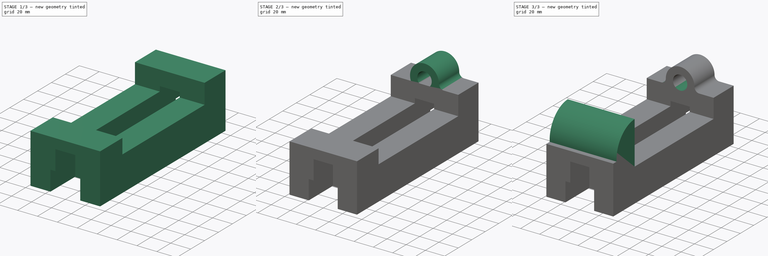
[diagram: build sequence overview — one tinted view per stage of 3, left to right]
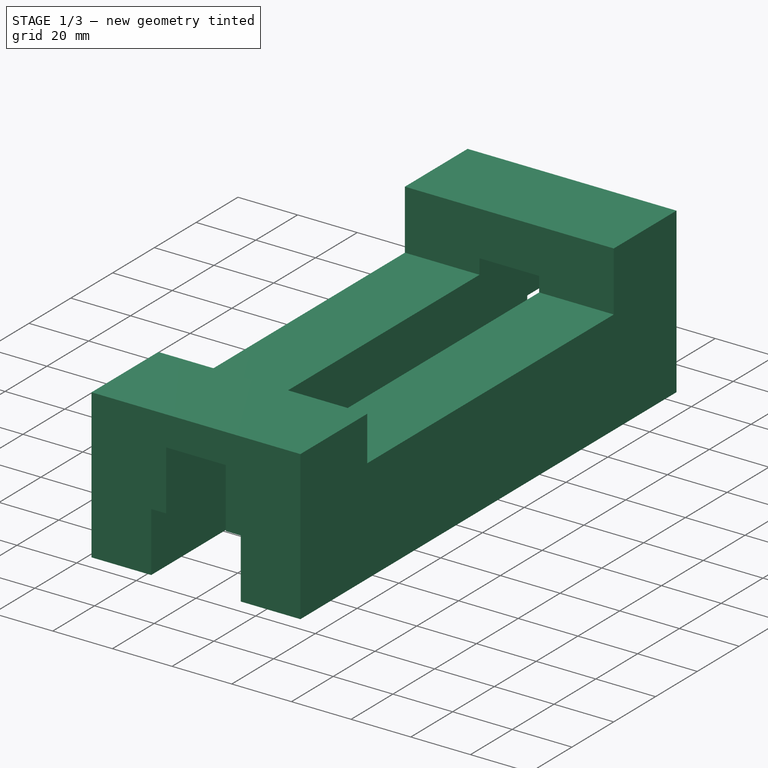
[diagram: stage 1 of 3 — iso view after this stage's code; geometry added in this stage tinted green]
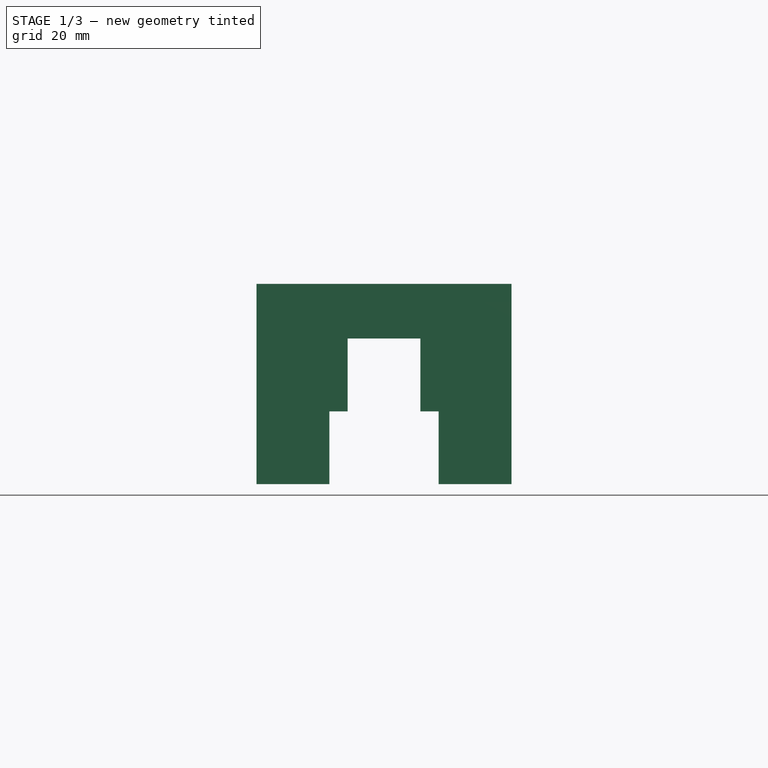
[diagram: stage 1 of 3 — front view after this stage's code; geometry added in this stage tinted green]
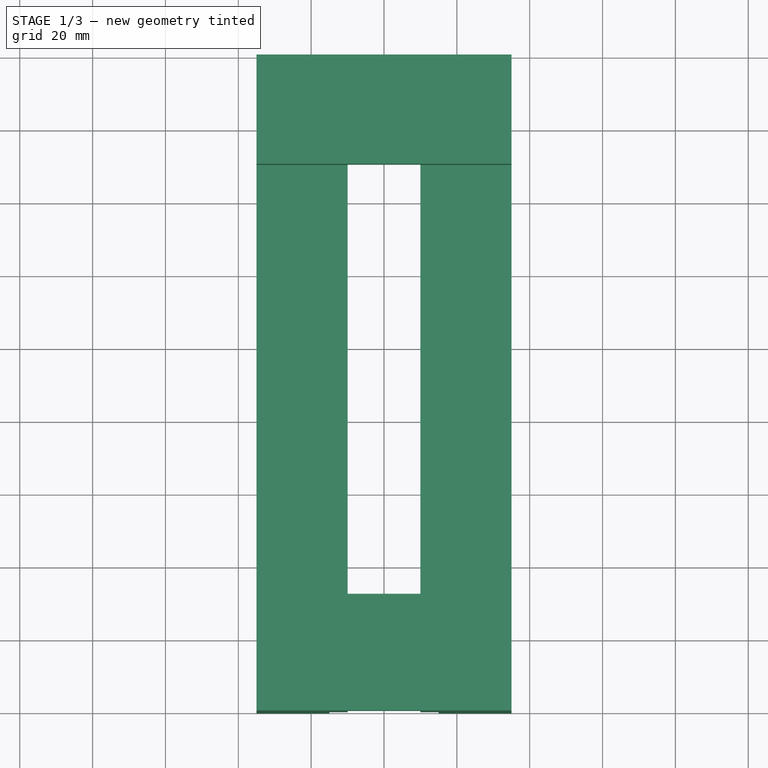
[diagram: stage 1 of 3 — top view after this stage's code; geometry added in this stage tinted green]
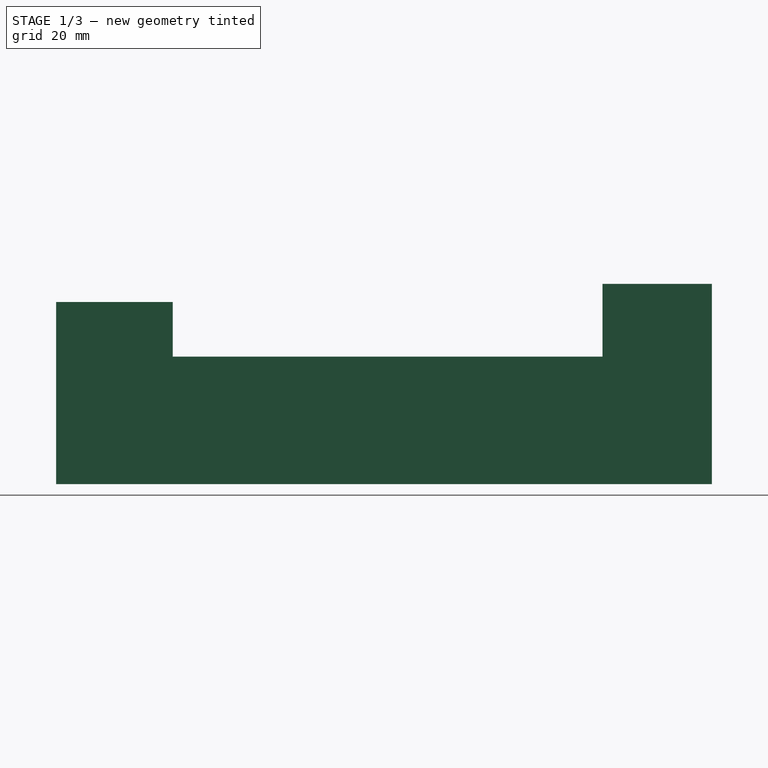
[diagram: stage 1 of 3 — right view after this stage's code; geometry added in this stage tinted green]
FCSTD DOCUMENT  (FreeCAD 0.16R)
Label: Fig 4.12 Final
License: All rights reserved
LicenseURL: http://en.wikipedia.org/wiki/All_rights_reserved
objects: Sketcher::SketchObject×6, PartDesign::Pad×4, PartDesign::Pocket×2, PartDesign::Fillet×2
note: 20 computed .brp shape members not serialized (recipe doc carries the construction recipe); baked Part::Feature solids carry a one-line shape summary decoded from their .brp

FEATURE [Sketcher::SketchObject] Sketch
  Placement = pos=(0,0,0) rot=(-1,0,0;4.71239rad)
  sketch-geometry (12):
    g0: LineSegment StartX=15 StartY=0 StartZ=0 EndX=35 EndY=0 EndZ=0
    g1: LineSegment StartX=35 StartY=0 StartZ=0 EndX=35 EndY=50 EndZ=0
    g2: LineSegment StartX=35 StartY=50 StartZ=0 EndX=-35 EndY=50 EndZ=0
    g3: LineSegment StartX=-35 StartY=50 StartZ=0 EndX=-35 EndY=0 EndZ=0
    g4: LineSegment StartX=-35 StartY=0 StartZ=0 EndX=-15 EndY=0 EndZ=0
    g5: LineSegment StartX=-15 StartY=0 StartZ=0 EndX=-15 EndY=20 EndZ=0
    g6: LineSegment StartX=-15 StartY=20 StartZ=0 EndX=-10 EndY=20 EndZ=0
    g7: LineSegment StartX=-10 StartY=20 StartZ=0 EndX=-10 EndY=40 EndZ=0
    g8: LineSegment StartX=-10 StartY=40 StartZ=0 EndX=10 EndY=40 EndZ=0
    g9: LineSegment StartX=10 StartY=40 StartZ=0 EndX=10 EndY=20 EndZ=0
    g10: LineSegment StartX=10 StartY=20 StartZ=0 EndX=15 EndY=20 EndZ=0
    g11: LineSegment StartX=15 StartY=20 StartZ=0 EndX=15 EndY=0 EndZ=0
  constraints (36):
    c: PointOnObject(g0,g-1)
    c: Horizontal(g0)
    c: Coincident(g0,g1)
    c: Vertical(g1)
    c: Coincident(g1,g2)
    c: Horizontal(g2)
    c: Coincident(g2,g3)
    c: Vertical(g3)
    c: Coincident(g3,g4)
    c: Horizontal(g4)
    c: Coincident(g4,g5)
    c: Vertical(g5)
    c: Coincident(g5,g6)
    c: Coincident(g6,g7)
    c: Vertical(g7)
    c: Coincident(g7,g8)
    c: Horizontal(g8)
    c: Coincident(g8,g9)
    c: Vertical(g9)
    c: Coincident(g9,g10)
    c: Coincident(g10,g11)
    c: Coincident(g11,g0)
    c: Vertical(g11)
    c: DistanceX(g2,g2) = 70
    c: DistanceX(g4,g4) = 20
    c: DistanceX(g0,g0) = 20
    c: DistanceY(g1,g1) = 50
    c: DistanceY(g11,g11) = 20
    c: DistanceY(g5,g5) = 20
    c: PointOnObject(g4,g-1)
    c: Horizontal(g6)
    c: Horizontal(g10)
    c: DistanceX(g8,g8) = 20
    c: DistanceX(g6,g6) = 5
    c: DistanceY(g9,g9) = 20
    c: Symmetric(g4,g0,g-2)
FEATURE [PartDesign::Pad] Pad
  Length = 180
  Length2 = 100
  Placement = pos=(0,0,0) rot=(-1,0,0;4.71239rad)
  Reversed = true
  Sketch = -> Sketch
  Type = 0
FEATURE [Sketcher::SketchObject] Sketch001
  ExternalGeometry = -> [Pad]
  Placement = pos=(35,0,0) rot=(0.707107,0,0.707107;3.14159rad)
  Support = -> Pad [Face2]
  sketch-geometry (4):
    g0: LineSegment StartX=64.6202 StartY=-32 StartZ=0 EndX=35 EndY=-32 EndZ=0
    g1: LineSegment StartX=35 StartY=-32 StartZ=0 EndX=35 EndY=-150 EndZ=0
    g2: LineSegment StartX=35 StartY=-150 StartZ=0 EndX=64.6202 EndY=-150 EndZ=0
    g3: LineSegment StartX=64.6202 StartY=-150 StartZ=0 EndX=64.6202 EndY=-32 EndZ=0
  constraints (11):
    c: Coincident(g0,g1)
    c: Coincident(g1,g2)
    c: Coincident(g2,g3)
    c: Coincident(g3,g0)
    c: Horizontal(g0)
    c: Horizontal(g2)
    c: Vertical(g1)
    c: Vertical(g3)
    c: DistanceY(g-3,g1) = 30
    c: DistanceY(g0,g-1) = 32
    c: DistanceX(g-1,g0) = 35
FEATURE [PartDesign::Pocket] Pocket
  Length = 5
  Placement = pos=(0,0,0) rot=(-1,0,0;4.71239rad)
  Sketch = -> Sketch001
  Type = 1
FEATURE [Sketcher::SketchObject] Sketch002
  ExternalGeometry = -> [Pocket]
  Placement = pos=(0,180,0) rot=(-1,0,0;1.5708rad)
  Support = -> Pocket [Face5]
  sketch-geometry (4):
    g0: LineSegment StartX=-35 StartY=-47.8399 StartZ=0 EndX=35 EndY=-47.8399 EndZ=0
    g1: LineSegment StartX=35 StartY=-47.8399 StartZ=0 EndX=35 EndY=-55 EndZ=0
    g2: LineSegment StartX=35 StartY=-55 StartZ=0 EndX=-35 EndY=-55 EndZ=0
    g3: LineSegment StartX=-35 StartY=-55 StartZ=0 EndX=-35 EndY=-47.8399 EndZ=0
  constraints (11):
    c: Coincident(g0,g1)
    c: Coincident(g1,g2)
    c: Coincident(g2,g3)
    c: Coincident(g3,g0)
    c: Horizontal(g0)
    c: Horizontal(g2)
    c: Vertical(g1)
    c: Vertical(g3)
    c: PointOnObject(g0,g-3)
    c: PointOnObject(g0,g-4)
    c: DistanceY(g2,g-3) = 55
FEATURE [PartDesign::Pad] Pad001
  Length = 30
  Length2 = 100
  Placement = pos=(0,0,0) rot=(-1,0,0;4.71239rad)
  Reversed = true
  Sketch = -> Sketch002
  Type = 0
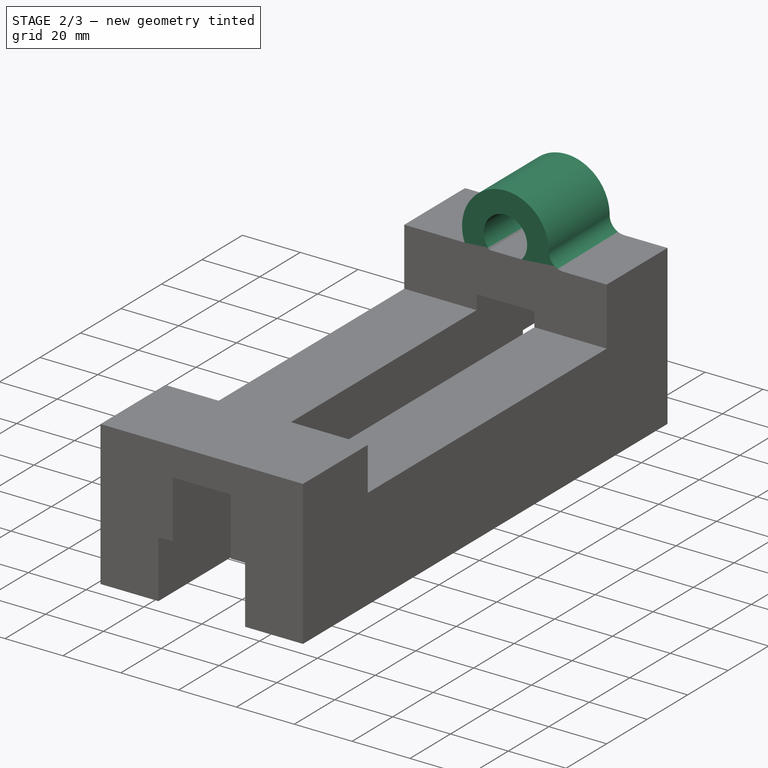
[diagram: stage 2 of 3 — iso view after this stage's code; geometry added in this stage tinted green]
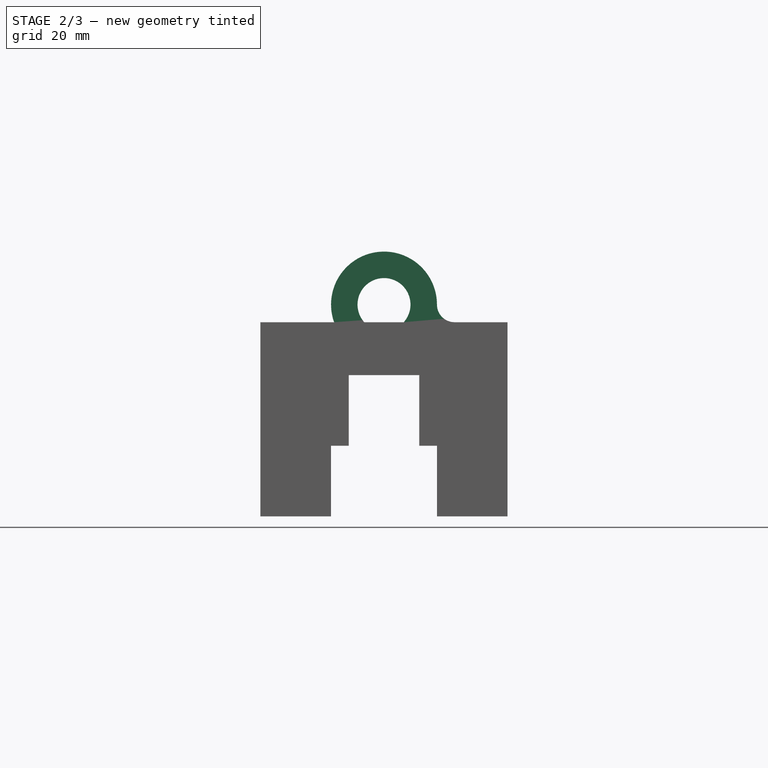
[diagram: stage 2 of 3 — front view after this stage's code; geometry added in this stage tinted green]
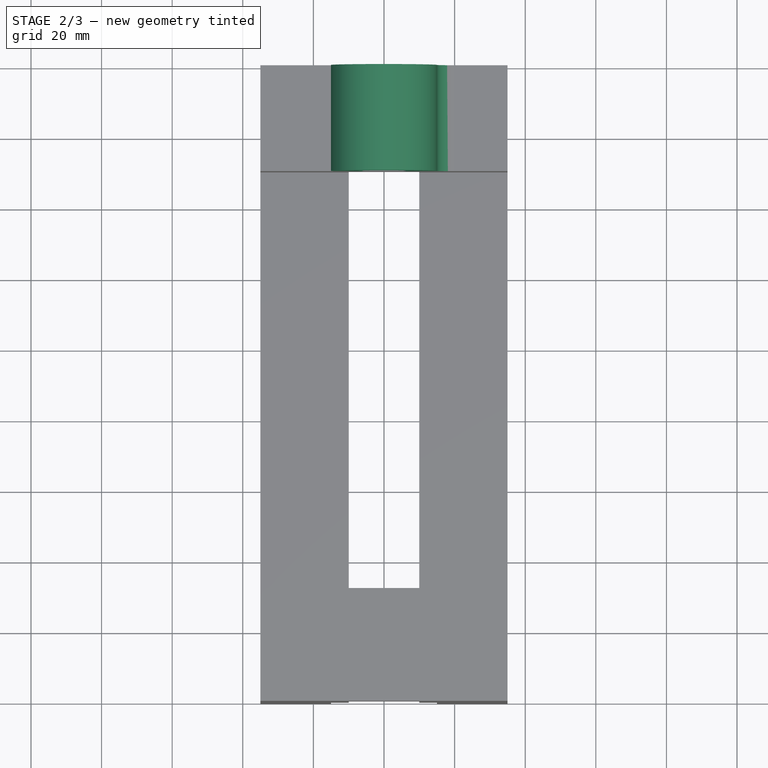
[diagram: stage 2 of 3 — top view after this stage's code; geometry added in this stage tinted green]
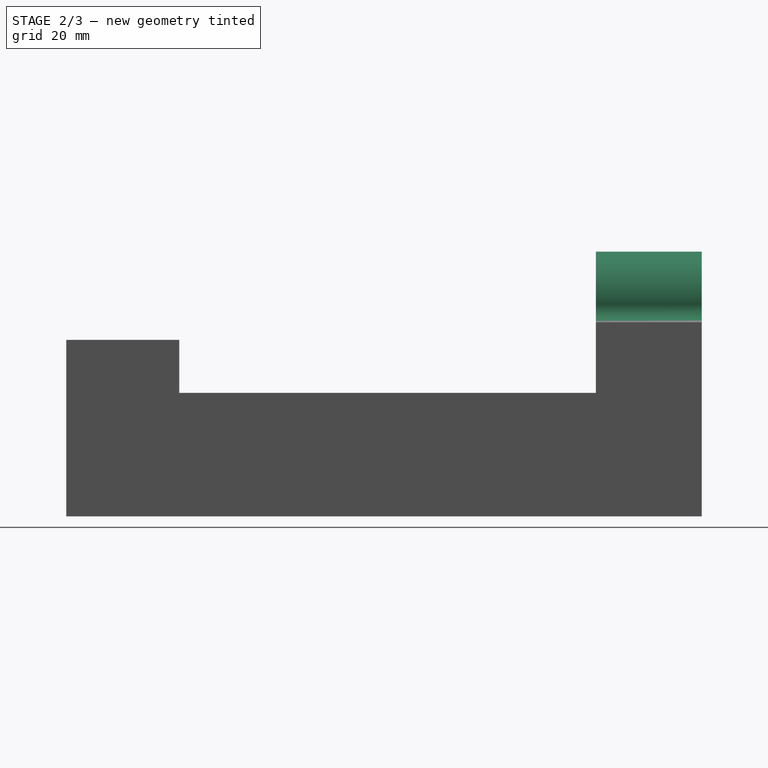
[diagram: stage 2 of 3 — right view after this stage's code; geometry added in this stage tinted green]
FEATURE [Sketcher::SketchObject] Sketch003
  ExternalGeometry = -> [Pad001]
  Placement = pos=(0,150,0) rot=(1,0,0;1.5708rad)
  Support = -> Pad001 [Face19]
  sketch-geometry (2):
    g0: Circle CenterX=0 CenterY=60 CenterZ=0 NormalX=0 NormalY=0 NormalZ=1 Radius=15
    g1: Circle CenterX=0 CenterY=60 CenterZ=0 NormalX=0 NormalY=0 NormalZ=1 Radius=7.5
  constraints (6):
    c: PointOnObject(g0,g-2)
    c: Radius(g0) = 15
    c: DistanceY(g-3) = 35
    c: DistanceY(g-3,g0) = 25
    c: Coincident(g1,g0)
    c: Radius(g1) = 7.5
FEATURE [PartDesign::Pad] Pad002
  Length = 30
  Length2 = 100
  Placement = pos=(0,0,0) rot=(-1,0,0;4.71239rad)
  Reversed = true
  Sketch = -> Sketch003
  Type = 0
FEATURE [PartDesign::Fillet] Fillet
  Base = -> Pad002 [Edge27]
  Placement = pos=(0,0,0) rot=(-1,0,0;4.71239rad)
  Radius = 5
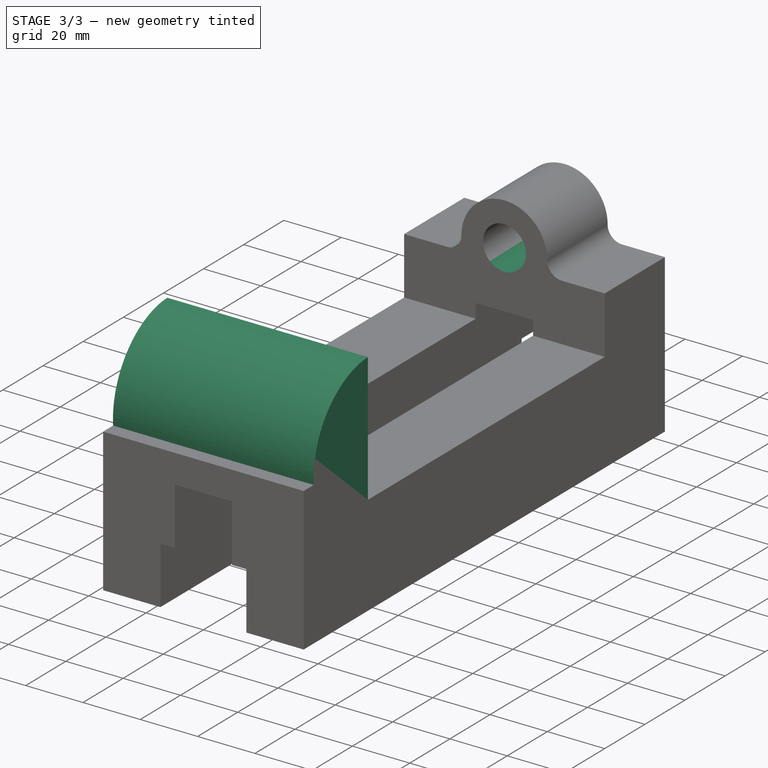
[diagram: stage 3 of 3 — iso view after this stage's code; geometry added in this stage tinted green]
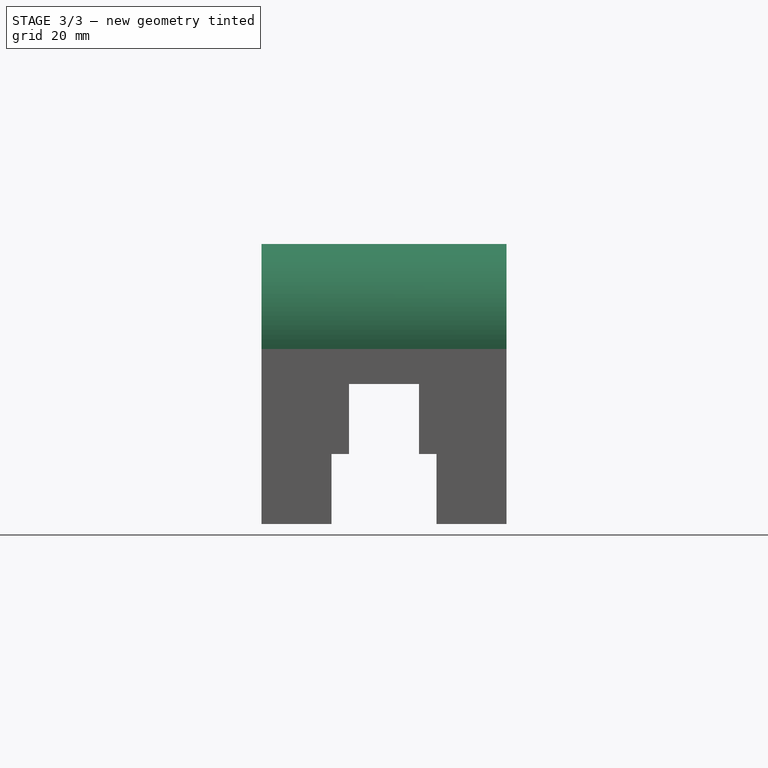
[diagram: stage 3 of 3 — front view after this stage's code; geometry added in this stage tinted green]
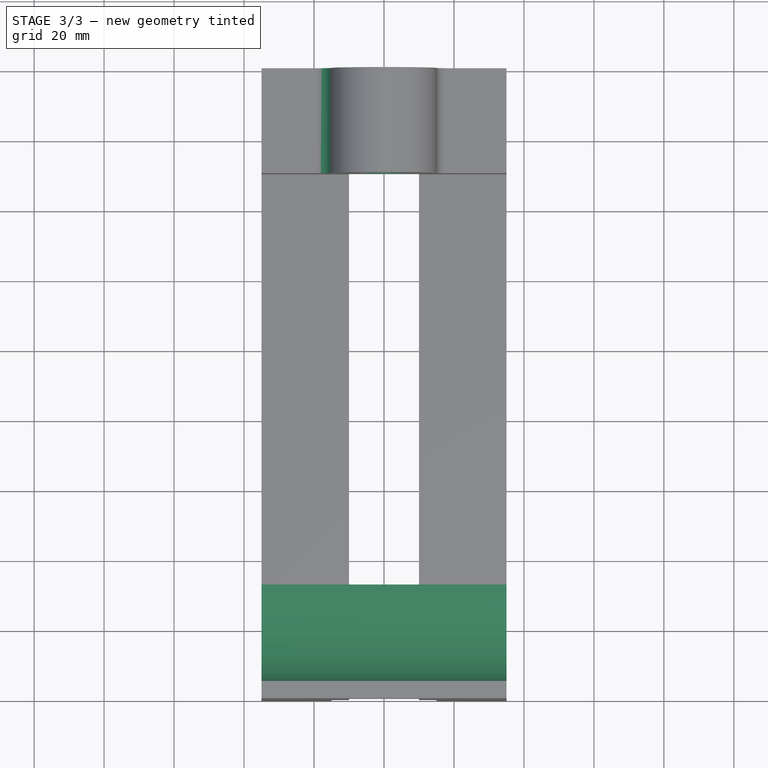
[diagram: stage 3 of 3 — top view after this stage's code; geometry added in this stage tinted green]
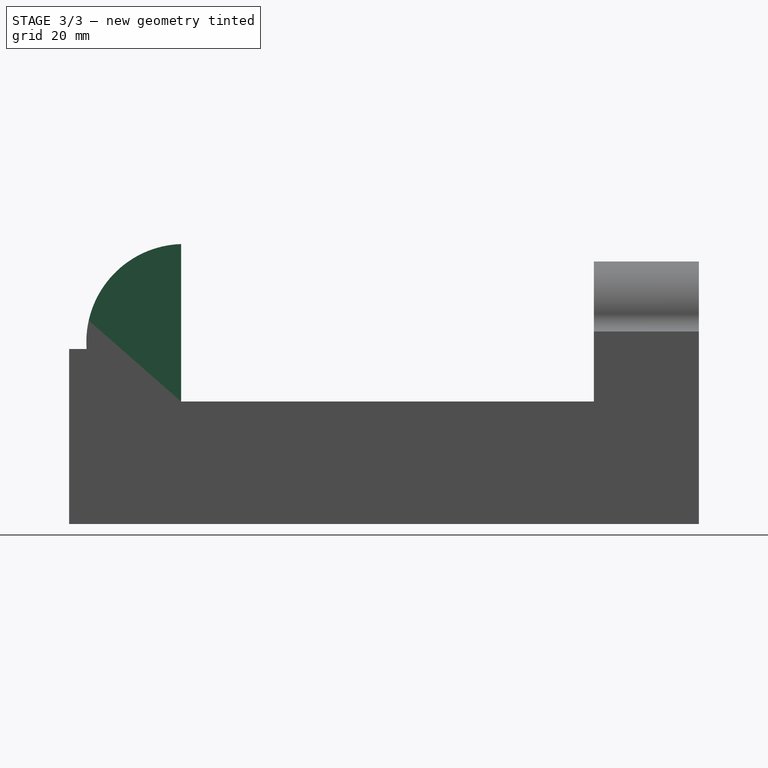
[diagram: stage 3 of 3 — right view after this stage's code; geometry added in this stage tinted green]
FEATURE [PartDesign::Fillet] Fillet001
  Base = -> Fillet [Edge41]
  Placement = pos=(0,0,0) rot=(-1,0,0;4.71239rad)
  Radius = 5
FEATURE [Sketcher::SketchObject] Sketch004
  ExternalGeometry = -> [Fillet001]
  Placement = pos=(0,180,0) rot=(-1,0,0;1.5708rad)
  Support = -> Fillet001 [Face1]
  sketch-geometry (1):
    g0: Circle CenterX=0 CenterY=-60 CenterZ=0 NormalX=0 NormalY=0 NormalZ=1 Radius=7.5
  constraints (2):
    c: Coincident(g0,g-3)
    c: Equal(g0,g-3)
FEATURE [PartDesign::Pocket] Pocket001
  Length = 30
  Placement = pos=(0,0,0) rot=(-1,0,0;4.71239rad)
  Sketch = -> Sketch004
  Type = 0
FEATURE [Sketcher::SketchObject] Sketch005
  ExternalGeometry = -> [Pocket001]
  Placement = pos=(35,0,0) rot=(0.707107,0,0.707107;3.14159rad)
  Support = -> Pocket001 [Face8]
  sketch-geometry (3):
    g0: LineSegment StartX=50 StartY=-32 StartZ=0 EndX=80 EndY=-32 EndZ=0
    g1: LineSegment StartX=50 StartY=-32 StartZ=0 EndX=50 EndY=-5 EndZ=0
    g2: ArcOfCircle CenterX=52.0154 CenterY=-32.9274 CenterZ=0 NormalX=0 NormalY=0 NormalZ=1 Radius=28 StartAngle=0.0331266 EndAngle=1.64284
  constraints (9):
    c: Coincident(g0,g-3)
    c: Horizontal(g0)
    c: DistanceX(g0,g0) = 30
    c: Coincident(g1,g0)
    c: Vertical(g1)
    c: Coincident(g2,g0)
    c: Coincident(g2,g1)
    c: Radius(g2) = 28
    c: DistanceY(g1,g-4) = 5
FEATURE [PartDesign::Pad] Pad003
  Length = 70
  Length2 = 100
  Placement = pos=(0,0,0) rot=(-1,0,0;4.71239rad)
  Reversed = true
  Sketch = -> Sketch005
  Type = 0
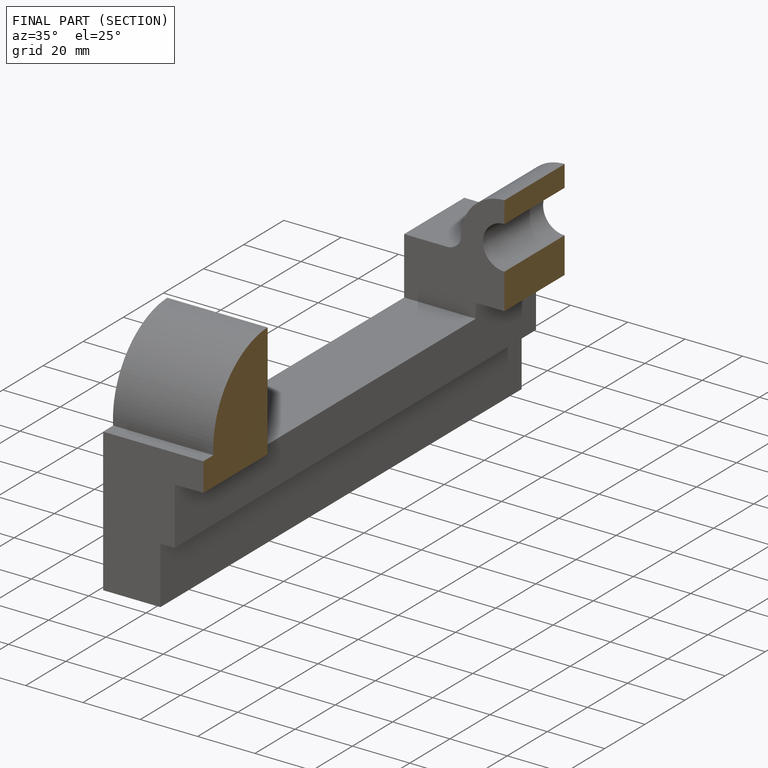
[diagram: finished part — half-section view (interior)]
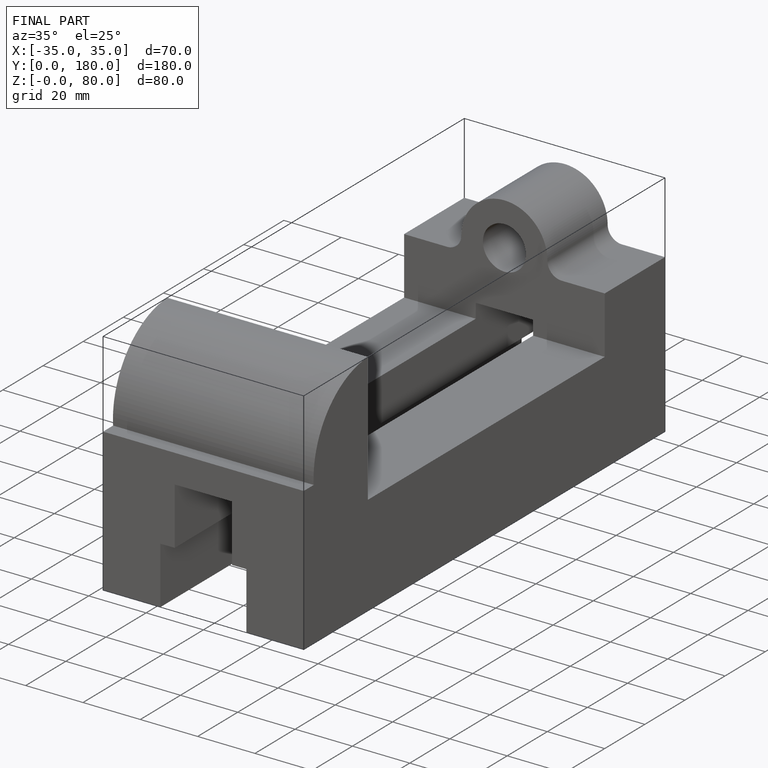
[diagram: finished part — iso view with bounding-box wireframe]
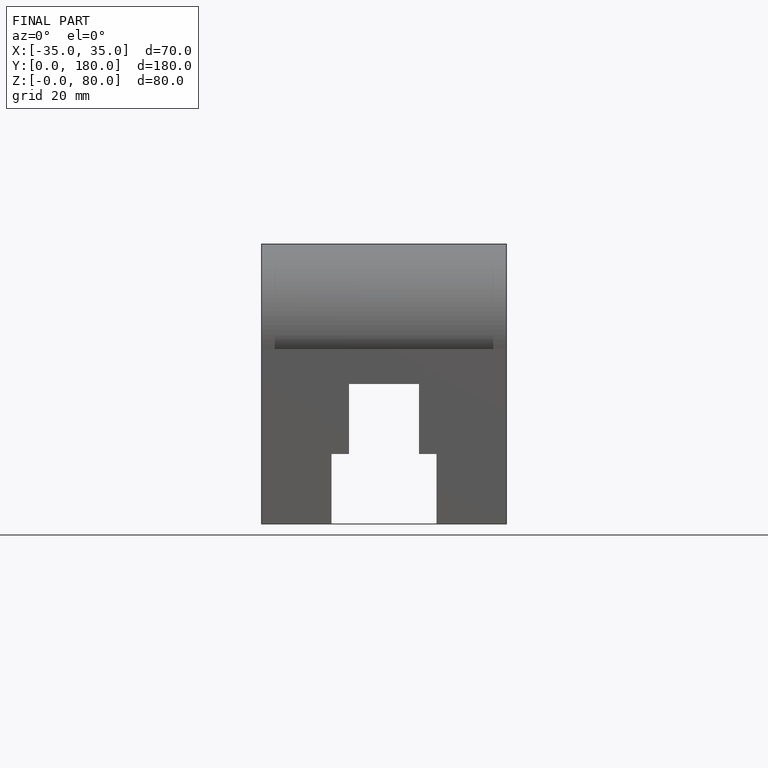
[diagram: finished part — front view with bounding-box wireframe]
